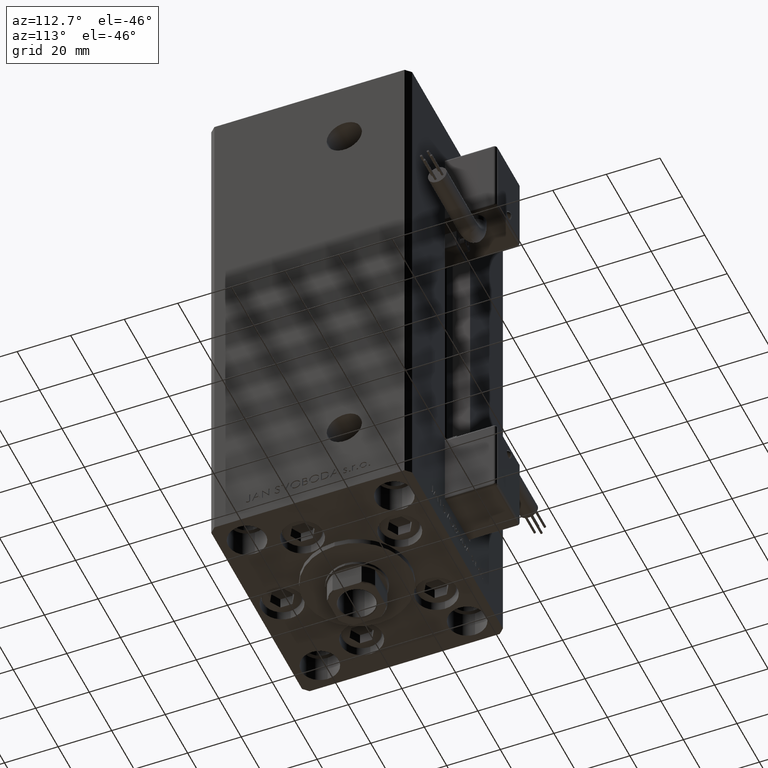
[diagram: clean part render]
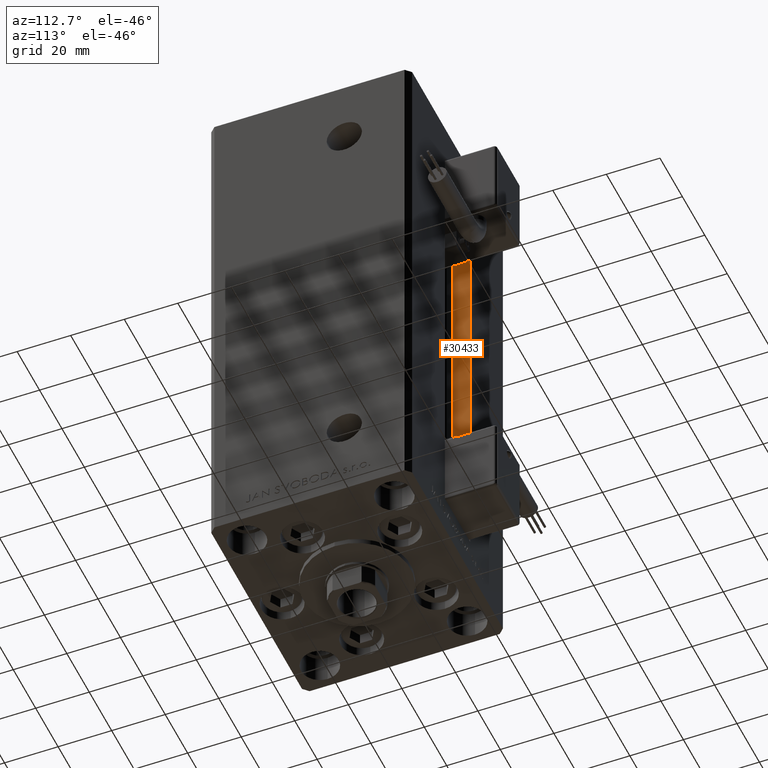
[diagram: same view with one face highlighted and labeled with its STEP entity id]
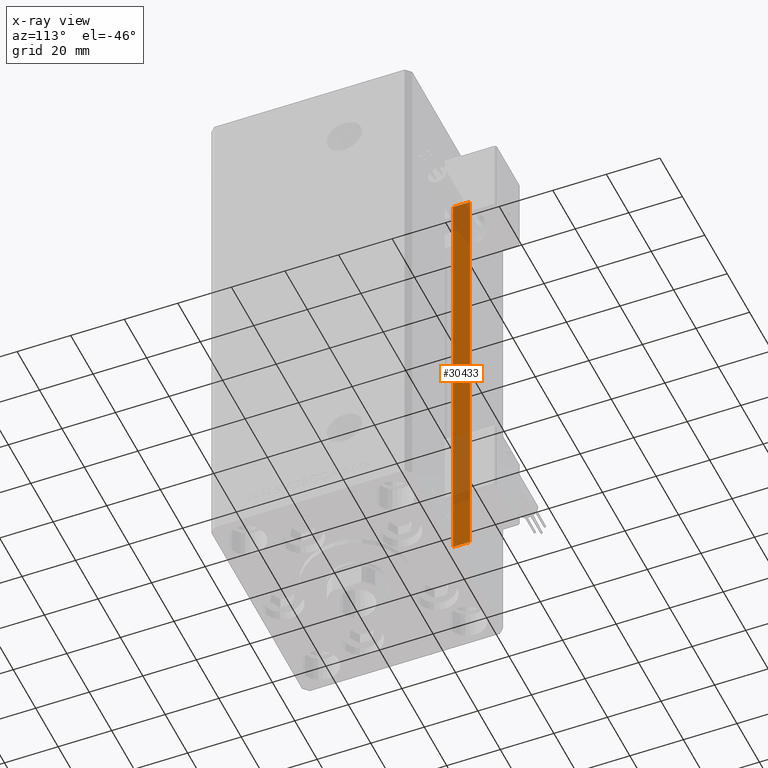
[diagram: x-ray of the same camera — body ghosted, the highlighted face saturated]
A machine part, auxiliary view. The second image highlights one B-rep face of the part: STEP entity #30433.
The next image is the same camera in x-ray: the body ghosted, the highlighted face saturated — about 29% of this face is hidden behind the body in this view.
In plain terms, the highlighted planar face has unit normal (-1, 0, 0).
Its self-contained STEP definition (entity closure, byte-faithful):
#1447 = VECTOR ( 'NONE', #51450, 1000.000000000000000 ) ;
#2426 = VERTEX_POINT ( 'NONE', #34924 ) ;
#4304 = DIRECTION ( 'NONE',  ( -0.000000000000000000, -0.000000000000000000, 1.000000000000000000 ) ) ;
#4336 = PLANE ( 'NONE',  #49445 ) ;
#5770 = CARTESIAN_POINT ( 'NONE',  ( -11.25000000000000000, 0.000000000000000000, 168.5000000000000000 ) ) ;
#8281 = CARTESIAN_POINT ( 'NONE',  ( -11.25000000000000000, 37.50000000000000000, 0.000000000000000000 ) ) ;
#8654 = EDGE_CURVE ( 'NONE', #44421, #48851, #9869, .T. ) ;
#9359 = EDGE_CURVE ( 'NONE', #2426, #26371, #50962, .T. ) ;
#9869 = LINE ( 'NONE', #45572, #49748 ) ;
#10738 = CARTESIAN_POINT ( 'NONE',  ( -11.25000000000000000, 30.99999999999999289, 0.000000000000000000 ) ) ;
#12540 = FACE_OUTER_BOUND ( 'NONE', #31837, .T. ) ;
#14516 = ORIENTED_EDGE ( 'NONE', *, *, #21663, .T. ) ;
#18055 = DIRECTION ( 'NONE',  ( -0.000000000000000000, -1.000000000000000000, -0.000000000000000000 ) ) ;
#20461 = DIRECTION ( 'NONE',  ( 0.000000000000000000, 0.000000000000000000, 1.000000000000000000 ) ) ;
#21554 = ORIENTED_EDGE ( 'NONE', *, *, #33701, .F. ) ;
#21663 = EDGE_CURVE ( 'NONE', #44421, #26371, #24144, .T. ) ;
#22204 = VECTOR ( 'NONE', #4304, 1000.000000000000000 ) ;
#24144 = LINE ( 'NONE', #8281, #22204 ) ;
#26371 = VERTEX_POINT ( 'NONE', #42649 ) ;
#27406 = CARTESIAN_POINT ( 'NONE',  ( -11.25000000000000000, 30.99999999999999289, 0.000000000000000000 ) ) ;
#27932 = LINE ( 'NONE', #27406, #1447 ) ;
#29898 = CARTESIAN_POINT ( 'NONE',  ( -11.25000000000000000, 30.99999999999999289, 0.000000000000000000 ) ) ;
#30345 = VECTOR ( 'NONE', #50713, 1000.000000000000000 ) ;
#30433 = ADVANCED_FACE ( 'NONE', ( #12540 ), #4336, .F. ) ;
#30816 = CARTESIAN_POINT ( 'NONE',  ( -11.25000000000000000, 37.50000000000000000, 0.000000000000000000 ) ) ;
#31837 = EDGE_LOOP ( 'NONE', ( #21554, #41509, #14516, #40676 ) ) ;
#33701 = EDGE_CURVE ( 'NONE', #48851, #2426, #27932, .T. ) ;
#34924 = CARTESIAN_POINT ( 'NONE',  ( -11.25000000000000000, 30.99999999999999289, 168.5000000000000000 ) ) ;
#40676 = ORIENTED_EDGE ( 'NONE', *, *, #9359, .F. ) ;
#41509 = ORIENTED_EDGE ( 'NONE', *, *, #8654, .F. ) ;
#42649 = CARTESIAN_POINT ( 'NONE',  ( -11.25000000000000000, 37.50000000000000000, 168.5000000000000000 ) ) ;
#44421 = VERTEX_POINT ( 'NONE', #30816 ) ;
#45572 = CARTESIAN_POINT ( 'NONE',  ( -11.25000000000000000, 30.99999999999999289, 0.000000000000000000 ) ) ;
#46011 = DIRECTION ( 'NONE',  ( -1.000000000000000000, 0.000000000000000000, 0.000000000000000000 ) ) ;
#48851 = VERTEX_POINT ( 'NONE', #10738 ) ;
#49445 = AXIS2_PLACEMENT_3D ( 'NONE', #29898, #46011, #20461 ) ;
#49748 = VECTOR ( 'NONE', #18055, 1000.000000000000000 ) ;
#50713 = DIRECTION ( 'NONE',  ( 0.000000000000000000, 1.000000000000000000, 0.000000000000000000 ) ) ;
#50962 = LINE ( 'NONE', #5770, #30345 ) ;
#51450 = DIRECTION ( 'NONE',  ( -0.000000000000000000, -0.000000000000000000, 1.000000000000000000 ) ) ;